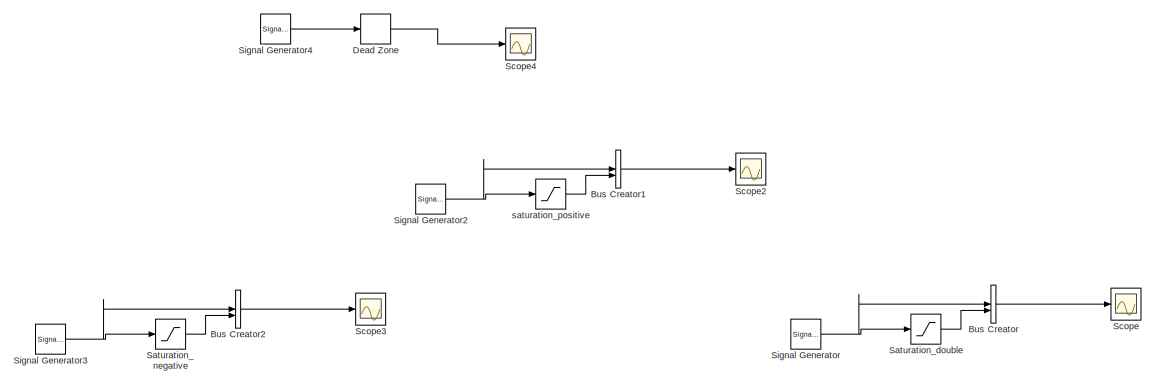
[diagram: root canvas - part 1/2, full width, top band]
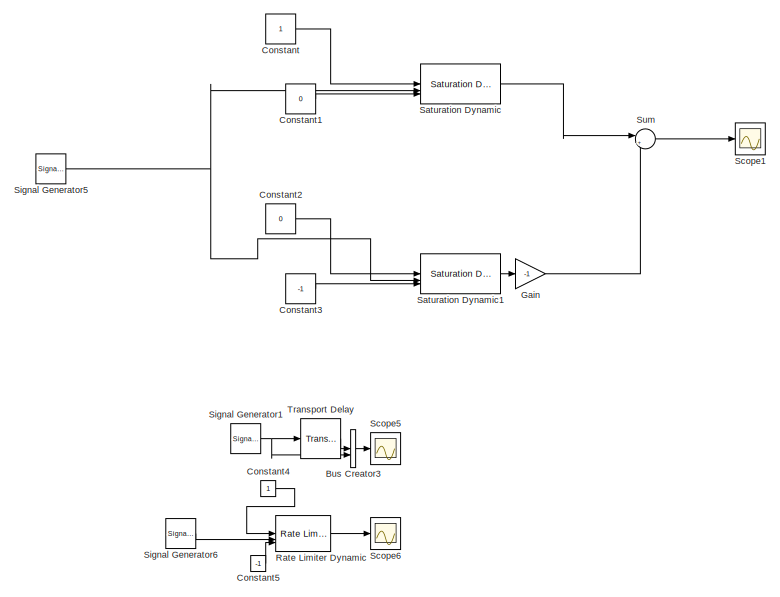
[diagram: root canvas - part 2/2, bottom center region]
MODEL slx_f8dc9ca787bb
KIND model
CONFIG AbsTol = auto
CONFIG EnableMultiTasking = off
CONFIG FixedStep = auto
CONFIG MaxStep = auto
CONFIG MinStep = auto
CONFIG RelTol = 1e-3
CONFIG SampleTimeConstraint = Unconstrained
CONFIG SolverName = VariableStepAuto
CONFIG StartTime = 0.0
CONFIG StopTime = 10
BLOCK [BusCreator] Bus Creator
  DisplayOption = bar
  InheritFromInputs = on
  Inputs = 2
BLOCK [BusCreator] Bus Creator1
  DisplayOption = bar
  InheritFromInputs = on
  Inputs = 2
BLOCK [BusCreator] Bus Creator2
  DisplayOption = bar
  InheritFromInputs = on
  Inputs = 2
BLOCK [BusCreator] Bus Creator3
  DisplayOption = bar
  InheritFromInputs = on
  Inputs = 2
BLOCK [Constant] Constant
BLOCK [Constant] Constant1
  Value = 0
BLOCK [Constant] Constant2
  Value = 0
BLOCK [Constant] Constant3
  Value = -1
BLOCK [Constant] Constant4
BLOCK [Constant] Constant5
  Value = -1
BLOCK [DeadZone] Dead Zone
  LowerValue = -0.25
  UpperValue = 0.25
BLOCK [Gain] Gain
  Gain = -1
BLOCK [Reference] Rate Limiter Dynamic  REF=simulink/Discontinuities/Rate Limiter
Dynamic
  SourceBlock = simulink/Discontinuities/Rate Limiter\nDynamic
  SourceType = Rate Limiter Dynamic
BLOCK [Reference] Saturation Dynamic  REF=simulink/Discontinuities/Saturation
Dynamic
  SourceBlock = simulink/Discontinuities/Saturation\nDynamic
  SourceType = Saturation Dynamic
BLOCK [Reference] Saturation Dynamic1  REF=simulink/Discontinuities/Saturation
Dynamic
  SourceBlock = simulink/Discontinuities/Saturation\nDynamic
  SourceType = Saturation Dynamic
BLOCK [Saturate] Saturation_double
BLOCK [Saturate] Saturation_negative
  UpperLimit = 1
BLOCK [Scope] Scope
  Floating = off
  NumInputPorts = 1
  ScopeSpecificationString = Simulink.scopes.TimeScopeBlockCfg('CurrentConfiguration', extmgr.ConfigurationSet(extmgr.Configuration('Core','General UI',true),extmgr.Configuration('Core','Source UI',true),extmgr.Configuration('Sources','WiredSimulink',true),extmgr.Configuration('Visuals','Time Domain',true,'SerializedDisplays',{struct('MinYLimReal','-1.24861','MaxYLimReal','1.24861','YLabelReal','','MinYLimMag','0.00000','MaxY...<+1356ch>
BLOCK [Scope] Scope1
  Floating = off
  NumInputPorts = 1
  ScopeSpecificationString = Simulink.scopes.TimeScopeBlockCfg('CurrentConfiguration', extmgr.ConfigurationSet(extmgr.Configuration('Core','General UI',true),extmgr.Configuration('Core','Source UI',true),extmgr.Configuration('Sources','WiredSimulink',true,'DataLoggingVariableName','ScopeData1'),extmgr.Configuration('Visuals','Time Domain',true,'SerializedDisplays',{struct('MinYLimReal','-0.12495','MaxYLimReal','1.12452','YLab...<+1567ch>
BLOCK [Scope] Scope2
  Floating = off
  NumInputPorts = 1
  ScopeSpecificationString = Simulink.scopes.TimeScopeBlockCfg('CurrentConfiguration', extmgr.ConfigurationSet(extmgr.Configuration('Core','General UI',true),extmgr.Configuration('Core','Source UI',true),extmgr.Configuration('Sources','WiredSimulink',true,'DataLoggingVariableName','ScopeData2'),extmgr.Configuration('Visuals','Time Domain',true,'SerializedDisplays',{struct('MinYLimReal','-1.24861','MaxYLimReal','1.24861','YLab...<+1398ch>
BLOCK [Scope] Scope3
  Floating = off
  NumInputPorts = 1
  ScopeSpecificationString = Simulink.scopes.TimeScopeBlockCfg('CurrentConfiguration', extmgr.ConfigurationSet(extmgr.Configuration('Core','General UI',true),extmgr.Configuration('Core','Source UI',true),extmgr.Configuration('Sources','WiredSimulink',true,'DataLoggingVariableName','ScopeData3'),extmgr.Configuration('Visuals','Time Domain',true,'SerializedDisplays',{struct('MinYLimReal','-1.24861','MaxYLimReal','1.24861','YLab...<+1398ch>
BLOCK [Scope] Scope4
  Floating = off
  NumInputPorts = 1
  ScopeSpecificationString = Simulink.scopes.TimeScopeBlockCfg('CurrentConfiguration', extmgr.ConfigurationSet(extmgr.Configuration('Core','General UI',true),extmgr.Configuration('Core','Source UI',true),extmgr.Configuration('Sources','WiredSimulink',true,'DataLoggingVariableName','ScopeData1'),extmgr.Configuration('Visuals','Time Domain',true,'SerializedDisplays',{struct('MinYLimReal','-0.66384','MaxYLimReal','0.90658','YLab...<+1368ch>
BLOCK [Scope] Scope5
  Floating = off
  NumInputPorts = 1
  ScopeSpecificationString = Simulink.scopes.TimeScopeBlockCfg('CurrentConfiguration', extmgr.ConfigurationSet(extmgr.Configuration('Core','General UI',true),extmgr.Configuration('Core','Source UI',true),extmgr.Configuration('Sources','WiredSimulink',true,'DataLoggingVariableName','ScopeData2'),extmgr.Configuration('Visuals','Time Domain',true,'SerializedDisplays',{struct('MinYLimReal','-1.24563','MaxYLimReal','1.24904','YLab...<+1483ch>
BLOCK [Scope] Scope6
  Floating = off
  NumInputPorts = 1
  ScopeSpecificationString = Simulink.scopes.TimeScopeBlockCfg('CurrentConfiguration', extmgr.ConfigurationSet(extmgr.Configuration('Core','General UI',true),extmgr.Configuration('Core','Source UI',true),extmgr.Configuration('Sources','WiredSimulink',true,'DataLoggingVariableName','ScopeData3'),extmgr.Configuration('Visuals','Time Domain',true,'SerializedDisplays',{struct('MinYLimReal','-1.24563','MaxYLimReal','1.24904','YLab...<+1468ch>
BLOCK [SignalGenerator] Signal Generator
  Units = rad/sec
BLOCK [SignalGenerator] Signal Generator1
  Units = rad/sec
BLOCK [SignalGenerator] Signal Generator2
  Units = rad/sec
BLOCK [SignalGenerator] Signal Generator3
  Units = rad/sec
BLOCK [SignalGenerator] Signal Generator4
  Frequency = 0.2
  Units = rad/sec
BLOCK [SignalGenerator] Signal Generator5
  Units = rad/sec
BLOCK [SignalGenerator] Signal Generator6
  Units = rad/sec
BLOCK [Sum] Sum
  Inputs = |++
BLOCK [TransportDelay] Transport Delay
BLOCK [Saturate] saturation_positive
  LowerLimit = -1
LINE Bus Creator1:1 -> Scope2:1
LINE Bus Creator2:1 -> Scope3:1
LINE Bus Creator3:1 -> Scope5:1
LINE Bus Creator:1 -> Scope:1
LINE Constant1:1 -> Saturation Dynamic:3
LINE Constant2:1 -> Saturation Dynamic1:1
LINE Constant3:1 -> Saturation Dynamic1:3
LINE Constant4:1 -> Rate Limiter Dynamic:1
LINE Constant5:1 -> Rate Limiter Dynamic:3
LINE Constant:1 -> Saturation Dynamic:1
LINE Dead Zone:1 -> Scope4:1
LINE Gain:1 -> Sum:2
LINE Rate Limiter Dynamic:1 -> Scope6:1
LINE Saturation Dynamic1:1 -> Gain:1
LINE Saturation Dynamic:1 -> Sum:1
LINE Saturation_double:1 -> Bus Creator:2
LINE Saturation_negative:1 -> Bus Creator2:2
NET Signal Generator1:1 -> Bus Creator3:2, Transport Delay:1
NET Signal Generator2:1 -> Bus Creator1:1, saturation_positive:1
NET Signal Generator3:1 -> Bus Creator2:1, Saturation_negative:1
LINE Signal Generator4:1 -> Dead Zone:1
NET Signal Generator5:1 -> Saturation Dynamic1:2, Saturation Dynamic:2
LINE Signal Generator6:1 -> Rate Limiter Dynamic:2
NET Signal Generator:1 -> Bus Creator:1, Saturation_double:1
LINE Sum:1 -> Scope1:1
LINE Transport Delay:1 -> Bus Creator3:1
LINE saturation_positive:1 -> Bus Creator1:2
note: NET lines group one-source signal fan-out (src -> all destinations, sorted); 1:1 wires keep LINE
